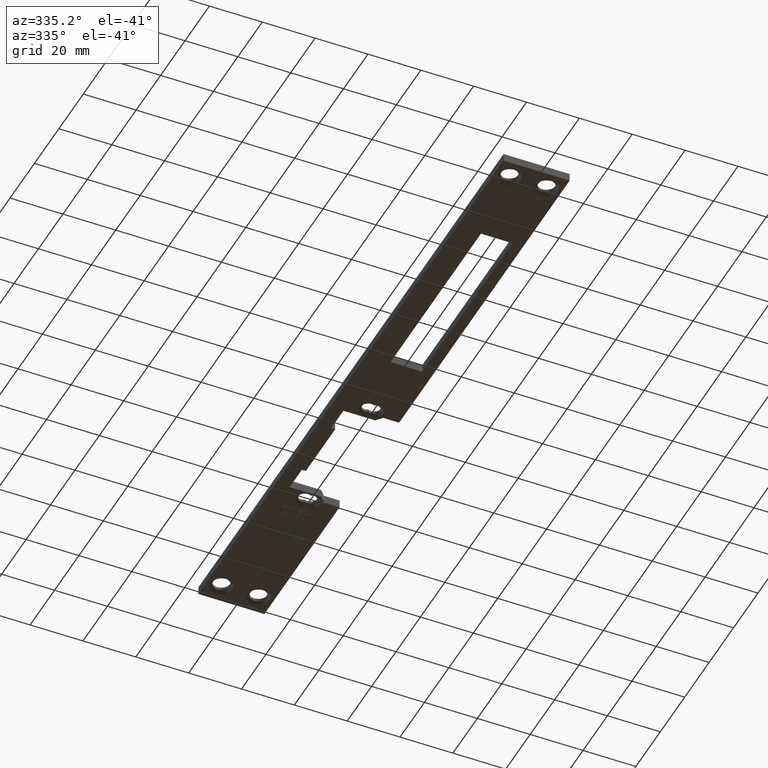
[diagram: clean part render]
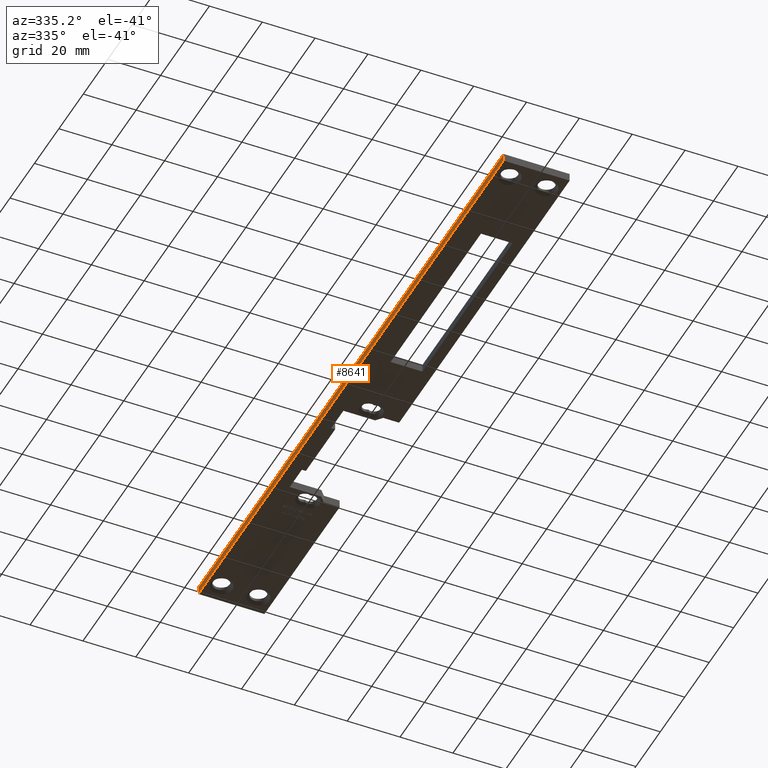
[diagram: same view with one face highlighted and labeled with its STEP entity id]
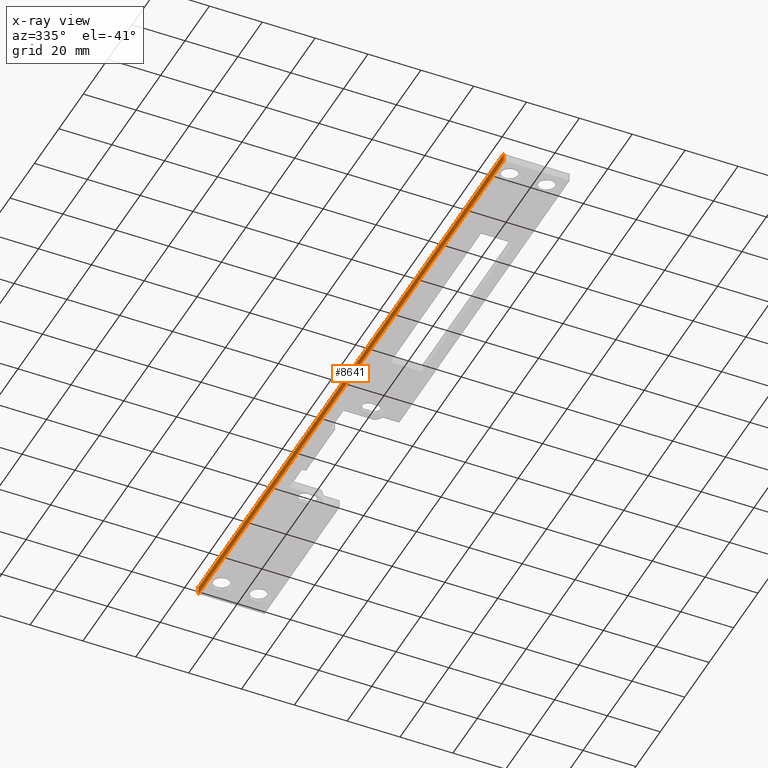
[diagram: x-ray of the same camera — body ghosted, the highlighted face saturated]
A machine part, auxiliary view. The second image highlights one B-rep face of the part: STEP entity #8641.
The next image is the same camera in x-ray: the body ghosted, the highlighted face saturated — about 0% of this face is hidden behind the body in this view.
In plain terms, the highlighted planar face has unit normal (1, 0, -0).
Its self-contained STEP definition (entity closure, byte-faithful):
#537 = LINE ( 'NONE', #10688, #4564 ) ;
#991 = DIRECTION ( 'NONE',  ( -0.000000000000000000, -0.000000000000000000, -1.000000000000000000 ) ) ;
#1788 = EDGE_CURVE ( 'NONE', #4420, #11190, #7795, .T. ) ;
#1877 = CARTESIAN_POINT ( 'NONE',  ( -12.50000000000001599, 125.0000000000000000, 3.000000000000000000 ) ) ;
#2338 = EDGE_LOOP ( 'NONE', ( #9796, #14376, #3995, #13792 ) ) ;
#3249 = DIRECTION ( 'NONE',  ( -1.249000902703301108E-16, 1.000000000000000000, 0.000000000000000000 ) ) ;
#3445 = DIRECTION ( 'NONE',  ( -0.000000000000000000, -0.000000000000000000, -1.000000000000000000 ) ) ;
#3995 = ORIENTED_EDGE ( 'NONE', *, *, #1788, .F. ) ;
#4047 = EDGE_CURVE ( 'NONE', #4420, #12294, #8197, .T. ) ;
#4316 = CARTESIAN_POINT ( 'NONE',  ( -12.49999999999998579, -125.0000000000000284, 3.000000000000000000 ) ) ;
#4420 = VERTEX_POINT ( 'NONE', #1877 ) ;
#4564 = VECTOR ( 'NONE', #3445, 1000.000000000000000 ) ;
#5719 = CARTESIAN_POINT ( 'NONE',  ( -12.50000000000001599, 125.0000000000000000, 0.000000000000000000 ) ) ;
#5909 = CARTESIAN_POINT ( 'NONE',  ( -12.50000000000001599, 125.0000000000000000, 3.000000000000000000 ) ) ;
#6169 = FACE_OUTER_BOUND ( 'NONE', #2338, .T. ) ;
#6171 = LINE ( 'NONE', #6465, #10146 ) ;
#6209 = VERTEX_POINT ( 'NONE', #8730 ) ;
#6465 = CARTESIAN_POINT ( 'NONE',  ( -12.50000000000001599, 125.0000000000000000, 0.000000000000000000 ) ) ;
#6662 = VECTOR ( 'NONE', #991, 1000.000000000000000 ) ;
#7358 = DIRECTION ( 'NONE',  ( 1.249000902703301108E-16, -1.000000000000000000, 0.000000000000000000 ) ) ;
#7795 = LINE ( 'NONE', #14657, #13532 ) ;
#8197 = LINE ( 'NONE', #5909, #6662 ) ;
#8641 = ADVANCED_FACE ( 'NONE', ( #6169 ), #12916, .F. ) ;
#8730 = CARTESIAN_POINT ( 'NONE',  ( -12.49999999999998579, -125.0000000000000284, 0.000000000000000000 ) ) ;
#9461 = EDGE_CURVE ( 'NONE', #12294, #6209, #6171, .T. ) ;
#9796 = ORIENTED_EDGE ( 'NONE', *, *, #9461, .T. ) ;
#10146 = VECTOR ( 'NONE', #12512, 1000.000000000000000 ) ;
#10688 = CARTESIAN_POINT ( 'NONE',  ( -12.49999999999998579, -125.0000000000000284, 3.000000000000000000 ) ) ;
#11190 = VERTEX_POINT ( 'NONE', #4316 ) ;
#12294 = VERTEX_POINT ( 'NONE', #5719 ) ;
#12470 = EDGE_CURVE ( 'NONE', #11190, #6209, #537, .T. ) ;
#12512 = DIRECTION ( 'NONE',  ( 1.249000902703301108E-16, -1.000000000000000000, 0.000000000000000000 ) ) ;
#12880 = AXIS2_PLACEMENT_3D ( 'NONE', #15365, #14240, #3249 ) ;
#12916 = PLANE ( 'NONE',  #12880 ) ;
#13532 = VECTOR ( 'NONE', #7358, 1000.000000000000000 ) ;
#13792 = ORIENTED_EDGE ( 'NONE', *, *, #4047, .T. ) ;
#14240 = DIRECTION ( 'NONE',  ( 1.000000000000000000, 1.249000902703301108E-16, -0.000000000000000000 ) ) ;
#14376 = ORIENTED_EDGE ( 'NONE', *, *, #12470, .F. ) ;
#14657 = CARTESIAN_POINT ( 'NONE',  ( -12.50000000000001599, 125.0000000000000000, 3.000000000000000000 ) ) ;
#15365 = CARTESIAN_POINT ( 'NONE',  ( -12.50000000000001599, 125.0000000000000000, 3.000000000000000000 ) ) ;